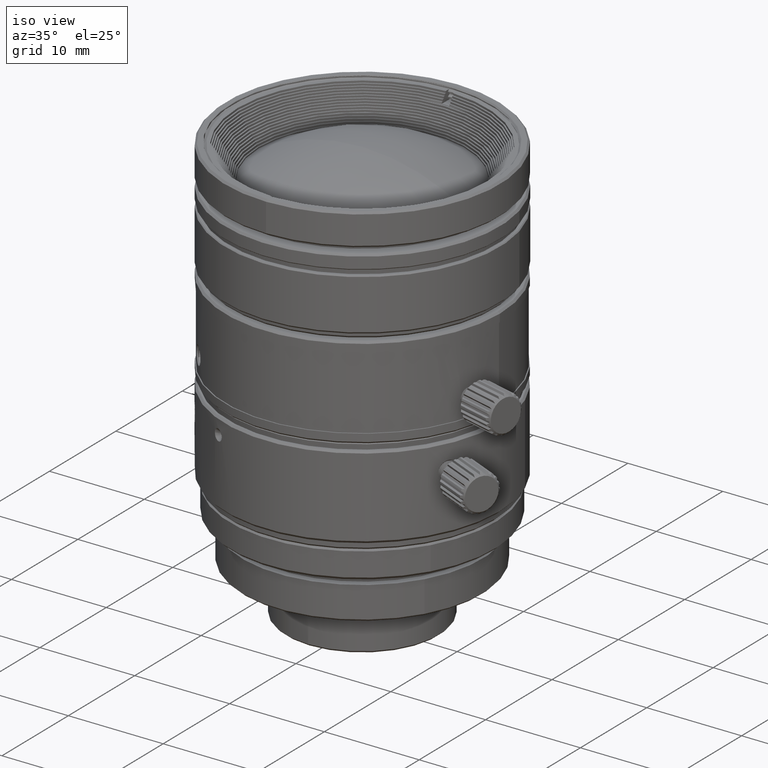
[diagram: clean part render]
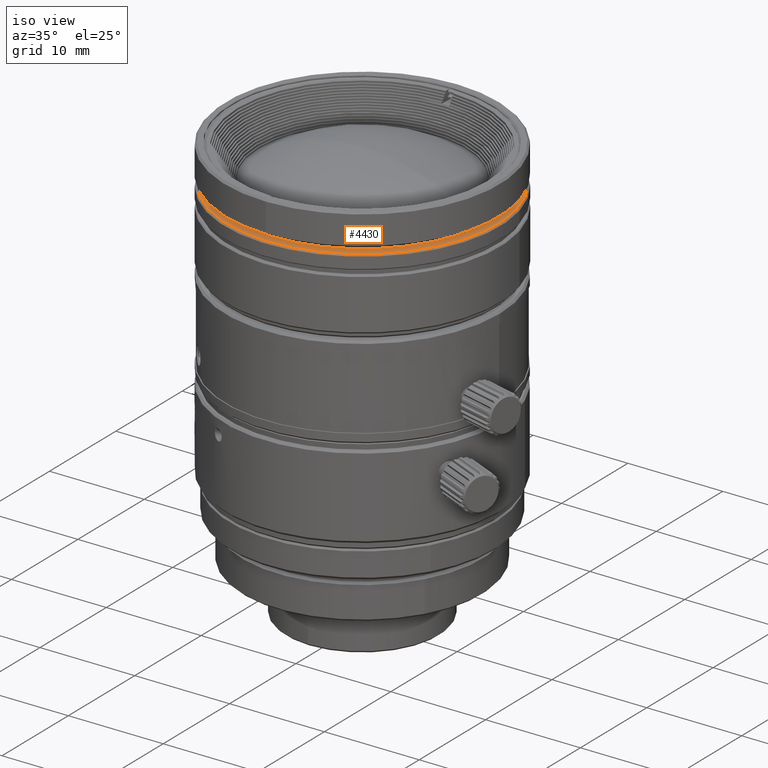
[diagram: same view with one face highlighted and labeled with its STEP entity id]
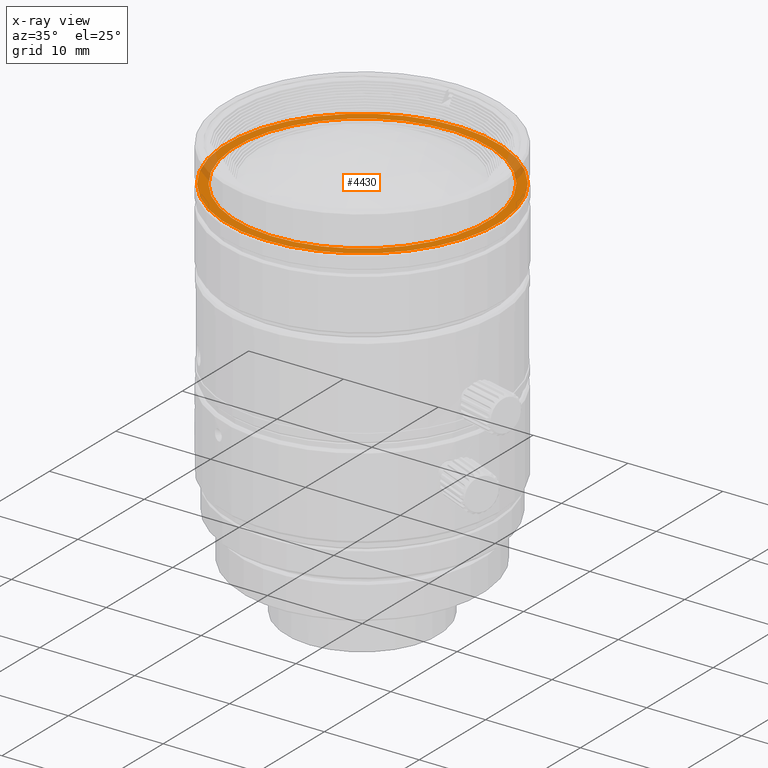
[diagram: x-ray of the same camera — body ghosted, the highlighted face saturated]
A machine part, iso view. The second image highlights one B-rep face of the part: STEP entity #4430.
The next image is the same camera in x-ray: the body ghosted, the highlighted face saturated — about 9% of this face is hidden behind the body in this view.
In plain terms, the highlighted planar face has unit normal (0, 0, -1).
Its self-contained STEP definition (entity closure, byte-faithful):
#412 = VERTEX_POINT ( 'NONE', #35972 ) ;
#1699 = AXIS2_PLACEMENT_3D ( 'NONE', #42061, #27224, #10683 ) ;
#3963 = DIRECTION ( 'NONE',  ( 0.000000000000000000, 0.000000000000000000, -1.000000000000000000 ) ) ;
#4430 = ADVANCED_FACE ( 'NONE', ( #59997, #44830 ), #29636, .F. ) ;
#7120 = CARTESIAN_POINT ( 'NONE',  ( -13.84383866733539747, -3.520481043755585127, 34.35024799434199849 ) ) ;
#10683 = DIRECTION ( 'NONE',  ( 0.9693596624036336928, 0.2456457711924089349, 0.000000000000000000 ) ) ;
#13490 = EDGE_LOOP ( 'NONE', ( #53874, #13852 ) ) ;
#13852 = ORIENTED_EDGE ( 'NONE', *, *, #37732, .F. ) ;
#14169 = VERTEX_POINT ( 'NONE', #7120 ) ;
#14827 = CIRCLE ( 'NONE', #46095, 13.30000000000000426 ) ;
#17755 = VERTEX_POINT ( 'NONE', #30351 ) ;
#18765 = CARTESIAN_POINT ( 'NONE',  ( 0.01800450521056250197, -0.007746515660042890827, 34.35024799434199849 ) ) ;
#20343 = CARTESIAN_POINT ( 'NONE',  ( 0.01800450521056250197, -0.007746515660042890827, 34.35024799434199849 ) ) ;
#20519 = AXIS2_PLACEMENT_3D ( 'NONE', #18765, #29220, #39683 ) ;
#21527 = ORIENTED_EDGE ( 'NONE', *, *, #35582, .F. ) ;
#22207 = CIRCLE ( 'NONE', #1699, 14.30000000000000426 ) ;
#24797 = EDGE_LOOP ( 'NONE', ( #38964, #21527 ) ) ;
#27224 = DIRECTION ( 'NONE',  ( 0.000000000000000000, 0.000000000000000000, -1.000000000000000000 ) ) ;
#29220 = DIRECTION ( 'NONE',  ( 0.000000000000000000, 0.000000000000000000, -1.000000000000000000 ) ) ;
#29636 = PLANE ( 'NONE',  #37928 ) ;
#30351 = CARTESIAN_POINT ( 'NONE',  ( 13.87984767775652273, 3.504988012435497957, 34.35024799434199849 ) ) ;
#31475 = DIRECTION ( 'NONE',  ( 0.000000000000000000, 0.000000000000000000, 1.000000000000000000 ) ) ;
#35582 = EDGE_CURVE ( 'NONE', #14169, #17755, #22207, .T. ) ;
#35972 = CARTESIAN_POINT ( 'NONE',  ( -12.87447900475776841, -3.274835272519082796, 34.35024799434199849 ) ) ;
#37732 = EDGE_CURVE ( 'NONE', #47564, #412, #43734, .T. ) ;
#37928 = AXIS2_PLACEMENT_3D ( 'NONE', #40096, #3963, #65679 ) ;
#38078 = CARTESIAN_POINT ( 'NONE',  ( 12.91048801517889011, 3.259342241198994294, 34.35024799434199849 ) ) ;
#38888 = CIRCLE ( 'NONE', #20519, 14.30000000000000426 ) ;
#38964 = ORIENTED_EDGE ( 'NONE', *, *, #65067, .F. ) ;
#39683 = DIRECTION ( 'NONE',  ( 0.9693596624036336928, 0.2456457711924089349, 0.000000000000000000 ) ) ;
#40096 = CARTESIAN_POINT ( 'NONE',  ( -3.494730022841470163, 13.85409665671429913, 34.35024799434199849 ) ) ;
#41068 = DIRECTION ( 'NONE',  ( -0.9693596624036335818, -0.2456457711924089071, 0.000000000000000000 ) ) ;
#42061 = CARTESIAN_POINT ( 'NONE',  ( 0.01800450521056250197, -0.007746515660042890827, 34.35024799434199849 ) ) ;
#43734 = CIRCLE ( 'NONE', #50164, 13.30000000000000426 ) ;
#44830 = FACE_BOUND ( 'NONE', #13490, .T. ) ;
#46095 = AXIS2_PLACEMENT_3D ( 'NONE', #46467, #51859, #41068 ) ;
#46467 = CARTESIAN_POINT ( 'NONE',  ( 0.01800450521056250197, -0.007746515660042890827, 34.35024799434199849 ) ) ;
#47564 = VERTEX_POINT ( 'NONE', #38078 ) ;
#50164 = AXIS2_PLACEMENT_3D ( 'NONE', #20343, #31475, #57092 ) ;
#51859 = DIRECTION ( 'NONE',  ( 0.000000000000000000, 0.000000000000000000, 1.000000000000000000 ) ) ;
#53874 = ORIENTED_EDGE ( 'NONE', *, *, #58121, .F. ) ;
#57092 = DIRECTION ( 'NONE',  ( -0.9693596624036335818, -0.2456457711924089071, 0.000000000000000000 ) ) ;
#58121 = EDGE_CURVE ( 'NONE', #412, #47564, #14827, .T. ) ;
#59997 = FACE_OUTER_BOUND ( 'NONE', #24797, .T. ) ;
#65067 = EDGE_CURVE ( 'NONE', #17755, #14169, #38888, .T. ) ;
#65679 = DIRECTION ( 'NONE',  ( 0.000000000000000000, -1.000000000000000000, 0.000000000000000000 ) ) ;